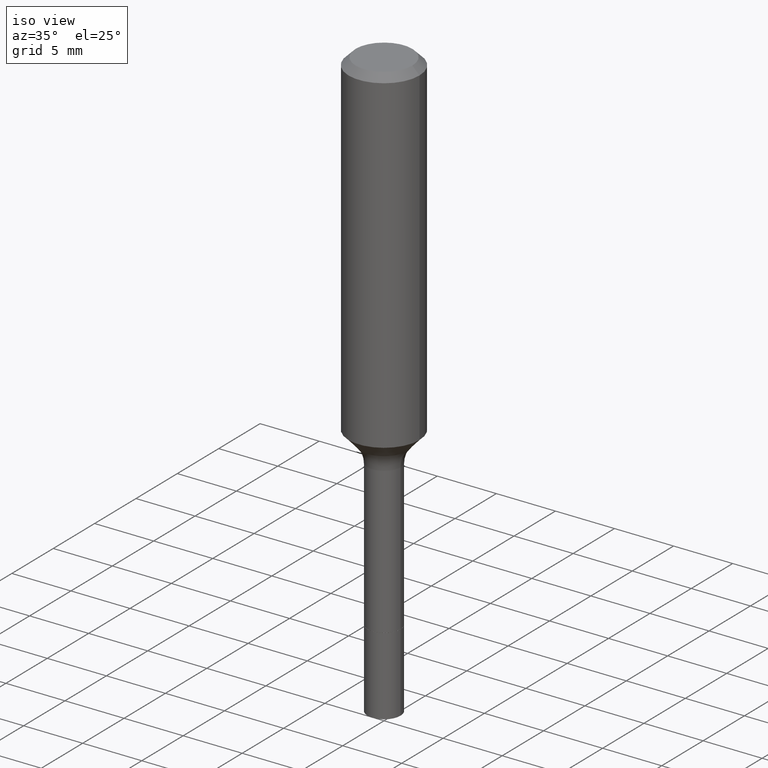
[diagram: clean part render]
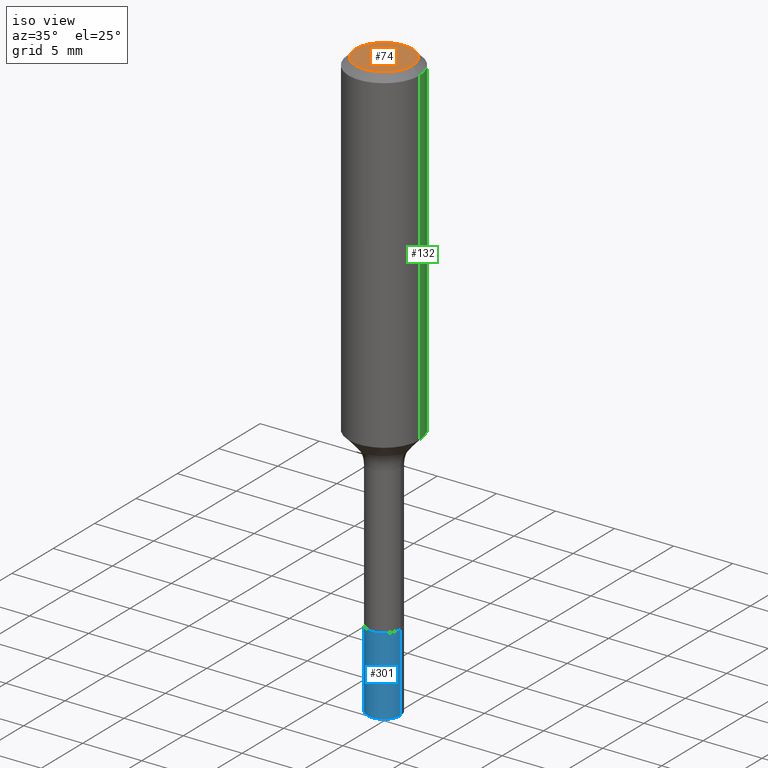
[diagram: same view with three faces highlighted in distinct colors, each labeled with its STEP entity id]
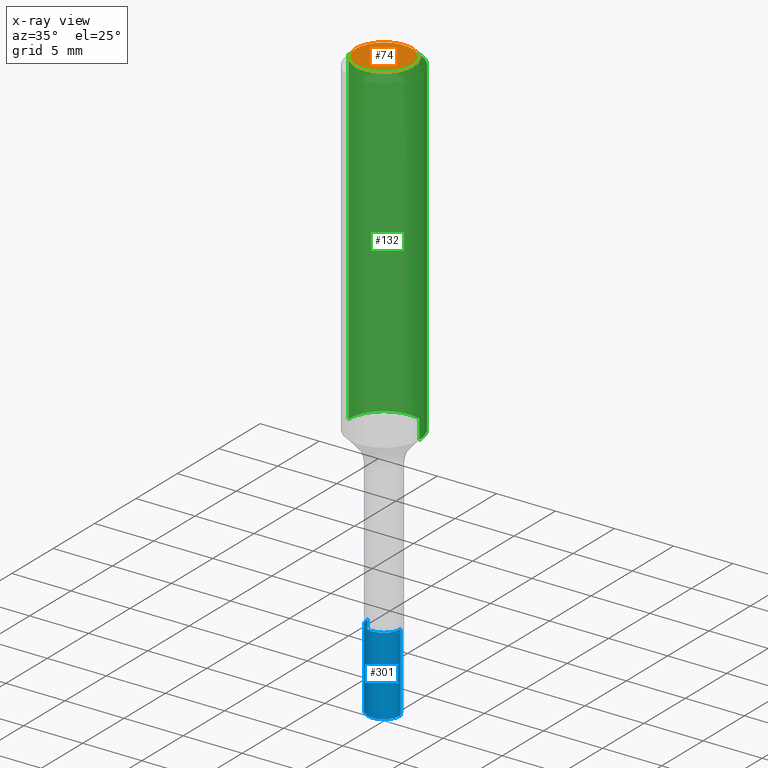
[diagram: x-ray of the same camera — body ghosted, the three highlighted faces saturated]
A machine part, iso view with three faces highlighted in distinct colors.
The next image is the same camera in x-ray (body ghosted, the three faces saturated) — at least one of them is partly hidden behind the body in this view.
Their STEP definitions:

[orange] entity #74 — the highlighted planar face has unit normal (0, -0, -1).
#33 = CIRCLE ( 'NONE', #64, 0.09447999999999998066 ) ;
#49 = EDGE_LOOP ( 'NONE', ( #121, #203 ) ) ;
#64 = AXIS2_PLACEMENT_3D ( 'NONE', #350, #73, #278 ) ;
#73 = DIRECTION ( 'NONE',  ( -2.445468806185136597E-29, 3.491481338843145583E-15, 1.000000000000000000 ) ) ;
#74 = ADVANCED_FACE ( 'NONE', ( #268 ), #349, .F. ) ;
#103 = DIRECTION ( 'NONE',  ( -2.445468806185136597E-29, 3.491481338843145583E-15, 1.000000000000000000 ) ) ;
#121 = ORIENTED_EDGE ( 'NONE', *, *, #514, .T. ) ;
#134 = VERTEX_POINT ( 'NONE', #164 ) ;
#159 = CARTESIAN_POINT ( 'NONE',  ( 7.545787641473140628E-46, -1.077338491108201769E-31, -3.085620075131671975E-17 ) ) ;
#164 = CARTESIAN_POINT ( 'NONE',  ( -0.09447999999999998066, 7.009847083995354710E-16, -3.085620075132147757E-17 ) ) ;
#168 = AXIS2_PLACEMENT_3D ( 'NONE', #213, #295, #463 ) ;
#200 = EDGE_CURVE ( 'NONE', #501, #134, #282, .T. ) ;
#203 = ORIENTED_EDGE ( 'NONE', *, *, #200, .T. ) ;
#213 = CARTESIAN_POINT ( 'NONE',  ( 3.772893820736570314E-46, -5.386692455541008845E-32, -1.542810037565835988E-17 ) ) ;
#268 = FACE_OUTER_BOUND ( 'NONE', #49, .T. ) ;
#278 = DIRECTION ( 'NONE',  ( 1.000000000000000000, -6.982962677686267499E-15, 4.875432709231658792E-29 ) ) ;
#282 = CIRCLE ( 'NONE', #377, 0.09447999999999998066 ) ;
#295 = DIRECTION ( 'NONE',  ( 2.438088387897960049E-29, -3.491481338843145188E-15, -1.000000000000000000 ) ) ;
#336 = CARTESIAN_POINT ( 'NONE',  ( 0.09447999999999998066, -7.704367267948738690E-16, -3.085620075131172158E-17 ) ) ;
#349 = PLANE ( 'NONE',  #168 ) ;
#350 = CARTESIAN_POINT ( 'NONE',  ( 7.545787641473140628E-46, -1.077338491108201769E-31, -3.085620075131671975E-17 ) ) ;
#377 = AXIS2_PLACEMENT_3D ( 'NONE', #159, #103, #394 ) ;
#394 = DIRECTION ( 'NONE',  ( 1.000000000000000000, -6.982962677686267499E-15, 4.875432709231658792E-29 ) ) ;
#463 = DIRECTION ( 'NONE',  ( -1.000000000000000000, 6.982962677686265922E-15, -4.876176775795935793E-29 ) ) ;
#501 = VERTEX_POINT ( 'NONE', #336 ) ;
#514 = EDGE_CURVE ( 'NONE', #134, #501, #33, .T. ) ;

[blue] entity #301 — the highlighted cylindrical surface (edge-blend (fillet) strip) has radius 1.3995 mm, axis along (-0, 0, 1).
#4 = EDGE_CURVE ( 'NONE', #175, #490, #143, .T. ) ;
#25 = CARTESIAN_POINT ( 'NONE',  ( 0.05510000000000006559, -6.349957110954028728E-15, -1.708500000000000130 ) ) ;
#31 = CARTESIAN_POINT ( 'NONE',  ( 0.05510000000000012804, -7.257742259053245293E-15, -1.968500000000000139 ) ) ;
#38 = VECTOR ( 'NONE', #430, 39.37007874015748143 ) ;
#45 = DIRECTION ( 'NONE',  ( 1.000000000000000000, -6.982962677686266711E-15, 0.000000000000000000 ) ) ;
#51 = FACE_OUTER_BOUND ( 'NONE', #94, .T. ) ;
#67 = LINE ( 'NONE', #380, #486 ) ;
#91 = ORIENTED_EDGE ( 'NONE', *, *, #4, .T. ) ;
#94 = EDGE_LOOP ( 'NONE', ( #179, #91, #375, #448 ) ) ;
#96 = CIRCLE ( 'NONE', #194, 0.05510000000000000314 ) ;
#110 = DIRECTION ( 'NONE',  ( -2.445468806185136597E-29, 3.491481338843145583E-15, 1.000000000000000000 ) ) ;
#122 = CARTESIAN_POINT ( 'NONE',  ( 0.05510000000000000314, -6.349957110954028728E-15, -1.708500000000000130 ) ) ;
#143 = CIRCLE ( 'NONE', #285, 0.05510000000000012804 ) ;
#171 = CYLINDRICAL_SURFACE ( 'NONE', #480, 0.05510000000000006559 ) ;
#175 = VERTEX_POINT ( 'NONE', #277 ) ;
#179 = ORIENTED_EDGE ( 'NONE', *, *, #424, .F. ) ;
#187 = VERTEX_POINT ( 'NONE', #362 ) ;
#194 = AXIS2_PLACEMENT_3D ( 'NONE', #223, #511, #468 ) ;
#207 = DIRECTION ( 'NONE',  ( -2.445468806185136597E-29, 3.491481338843145583E-15, 1.000000000000000000 ) ) ;
#223 = CARTESIAN_POINT ( 'NONE',  ( 4.178083455367306140E-29, -5.965195867413514353E-15, -1.708500000000000130 ) ) ;
#224 = DIRECTION ( 'NONE',  ( 1.000000000000000000, -6.982962677686258822E-15, 0.000000000000000000 ) ) ;
#277 = CARTESIAN_POINT ( 'NONE',  ( -0.05510000000000012804, -6.027579394059307164E-15, -1.968500000000000139 ) ) ;
#285 = AXIS2_PLACEMENT_3D ( 'NONE', #475, #110, #224 ) ;
#291 = VERTEX_POINT ( 'NONE', #122 ) ;
#299 = DIRECTION ( 'NONE',  ( -2.445468806185136877E-29, 3.491481338843145188E-15, 1.000000000000000000 ) ) ;
#301 = ADVANCED_FACE ( 'NONE', ( #51 ), #171, .T. ) ;
#302 = LINE ( 'NONE', #25, #38 ) ;
#328 = CARTESIAN_POINT ( 'NONE',  ( 4.178083455367306140E-29, -5.965195867413514353E-15, -1.708500000000000130 ) ) ;
#351 = EDGE_CURVE ( 'NONE', #187, #291, #96, .T. ) ;
#362 = CARTESIAN_POINT ( 'NONE',  ( -0.05510000000000000314, -6.027579394059307953E-15, -1.708500000000000130 ) ) ;
#375 = ORIENTED_EDGE ( 'NONE', *, *, #396, .T. ) ;
#380 = CARTESIAN_POINT ( 'NONE',  ( -0.05510000000000006559, -5.573686820009698881E-15, -1.708500000000000130 ) ) ;
#396 = EDGE_CURVE ( 'NONE', #490, #291, #302, .T. ) ;
#424 = EDGE_CURVE ( 'NONE', #175, #187, #67, .T. ) ;
#430 = DIRECTION ( 'NONE',  ( -2.445468806185136877E-29, 3.491481338843145188E-15, 1.000000000000000000 ) ) ;
#448 = ORIENTED_EDGE ( 'NONE', *, *, #351, .F. ) ;
#468 = DIRECTION ( 'NONE',  ( 1.000000000000000000, -6.982962677686274599E-15, 0.000000000000000000 ) ) ;
#475 = CARTESIAN_POINT ( 'NONE',  ( 4.813905344975441835E-29, -6.872981015512731707E-15, -1.968500000000000139 ) ) ;
#480 = AXIS2_PLACEMENT_3D ( 'NONE', #328, #207, #45 ) ;
#486 = VECTOR ( 'NONE', #299, 39.37007874015748143 ) ;
#490 = VERTEX_POINT ( 'NONE', #31 ) ;
#511 = DIRECTION ( 'NONE',  ( -2.445468806185136597E-29, 3.491481338843145583E-15, 1.000000000000000000 ) ) ;

[green] entity #132 — the highlighted cylindrical surface (partial cylindrical patch) has radius 2.9997 mm, axis along (-0, 0, 1).
#11 = CARTESIAN_POINT ( 'NONE',  ( -0.1180999999999999966, -1.159805774525281826E-15, -0.02362000000000014435 ) ) ;
#13 = DIRECTION ( 'NONE',  ( -2.445468806185136877E-29, 3.491481338843145188E-15, 1.000000000000000000 ) ) ;
#21 = VERTEX_POINT ( 'NONE', #271 ) ;
#23 = CIRCLE ( 'NONE', #395, 0.1180999999999999966 ) ;
#26 = CARTESIAN_POINT ( 'NONE',  ( 0.1181000000000001354, -4.740132593927196007E-15, -1.121427933219249384 ) ) ;
#46 = ORIENTED_EDGE ( 'NONE', *, *, #467, .F. ) ;
#55 = CARTESIAN_POINT ( 'NONE',  ( 2.742417029072343247E-29, -3.915444701692446956E-15, -1.121427933219249384 ) ) ;
#56 = VERTEX_POINT ( 'NONE', #26 ) ;
#75 = FACE_OUTER_BOUND ( 'NONE', #461, .T. ) ;
#105 = ORIENTED_EDGE ( 'NONE', *, *, #429, .T. ) ;
#132 = ADVANCED_FACE ( 'NONE', ( #75 ), #155, .T. ) ;
#138 = LINE ( 'NONE', #257, #264 ) ;
#155 = CYLINDRICAL_SURFACE ( 'NONE', #188, 0.1181000000000000660 ) ;
#173 = AXIS2_PLACEMENT_3D ( 'NONE', #55, #343, #339 ) ;
#188 = AXIS2_PLACEMENT_3D ( 'NONE', #231, #315, #482 ) ;
#231 = CARTESIAN_POINT ( 'NONE',  ( 0.000000000000000000, 0.000000000000000000, 0.000000000000000000 ) ) ;
#257 = CARTESIAN_POINT ( 'NONE',  ( -0.1181000000000000660, 8.391509709326787887E-16, -5.809262341591047287E-30 ) ) ;
#264 = VECTOR ( 'NONE', #459, 39.37007874015748143 ) ;
#266 = DIRECTION ( 'NONE',  ( 1.000000000000000000, -6.982962677686266711E-15, 0.000000000000000000 ) ) ;
#271 = CARTESIAN_POINT ( 'NONE',  ( 0.1180999999999999966, -9.071566814582237199E-16, -0.02362000000000014435 ) ) ;
#300 = VERTEX_POINT ( 'NONE', #11 ) ;
#306 = EDGE_CURVE ( 'NONE', #56, #21, #416, .T. ) ;
#315 = DIRECTION ( 'NONE',  ( -2.445468806185136597E-29, 3.491481338843145583E-15, 1.000000000000000000 ) ) ;
#316 = ORIENTED_EDGE ( 'NONE', *, *, #369, .T. ) ;
#339 = DIRECTION ( 'NONE',  ( 1.000000000000000000, -6.982962677686269077E-15, 0.000000000000000000 ) ) ;
#343 = DIRECTION ( 'NONE',  ( -2.445468806185136597E-29, 3.491481338843145583E-15, 1.000000000000000000 ) ) ;
#369 = EDGE_CURVE ( 'NONE', #483, #300, #138, .T. ) ;
#372 = CARTESIAN_POINT ( 'NONE',  ( 0.1181000000000000660, -8.246878922347485584E-16, 5.758764772215003944E-30 ) ) ;
#376 = DIRECTION ( 'NONE',  ( -2.445468806185136597E-29, 3.491481338843145583E-15, 1.000000000000000000 ) ) ;
#388 = CARTESIAN_POINT ( 'NONE',  ( -0.1181000000000001354, -3.076293730759767576E-15, -1.121427933219249384 ) ) ;
#395 = AXIS2_PLACEMENT_3D ( 'NONE', #509, #376, #266 ) ;
#411 = VECTOR ( 'NONE', #13, 39.37007874015748143 ) ;
#416 = LINE ( 'NONE', #372, #411 ) ;
#429 = EDGE_CURVE ( 'NONE', #56, #483, #470, .T. ) ;
#458 = ORIENTED_EDGE ( 'NONE', *, *, #306, .F. ) ;
#459 = DIRECTION ( 'NONE',  ( -2.445468806185136877E-29, 3.491481338843145188E-15, 1.000000000000000000 ) ) ;
#461 = EDGE_LOOP ( 'NONE', ( #105, #316, #46, #458 ) ) ;
#467 = EDGE_CURVE ( 'NONE', #21, #300, #23, .T. ) ;
#470 = CIRCLE ( 'NONE', #173, 0.1181000000000001354 ) ;
#482 = DIRECTION ( 'NONE',  ( 1.000000000000000000, -6.982962677686266711E-15, 4.876176775795936353E-29 ) ) ;
#483 = VERTEX_POINT ( 'NONE', #388 ) ;
#509 = CARTESIAN_POINT ( 'NONE',  ( 5.776197320209328408E-31, -8.246878922347560526E-17, -0.02362000000000014435 ) ) ;